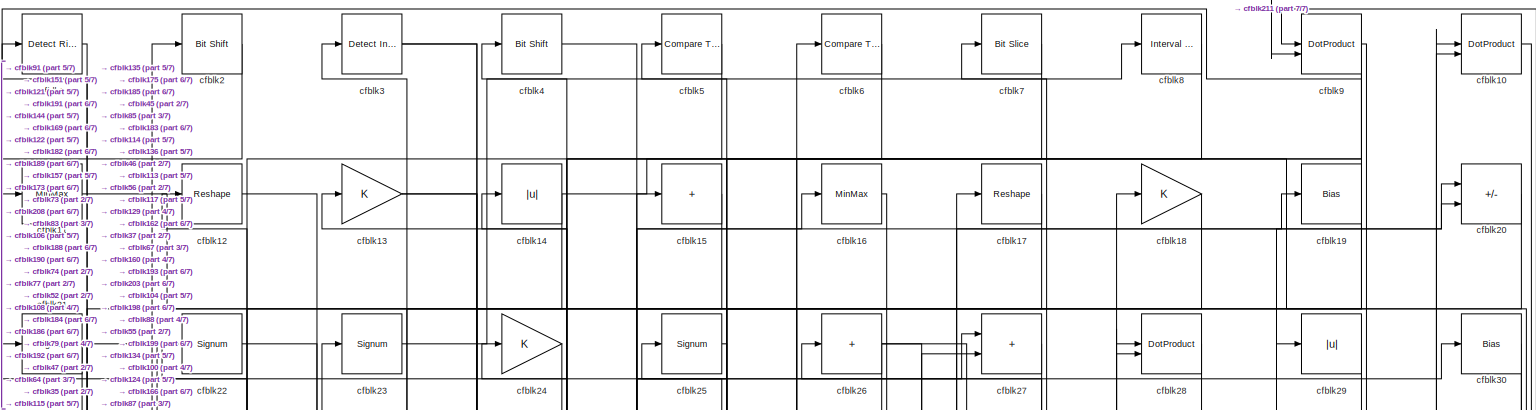
[diagram: root canvas - part 1/7, full width, top band]
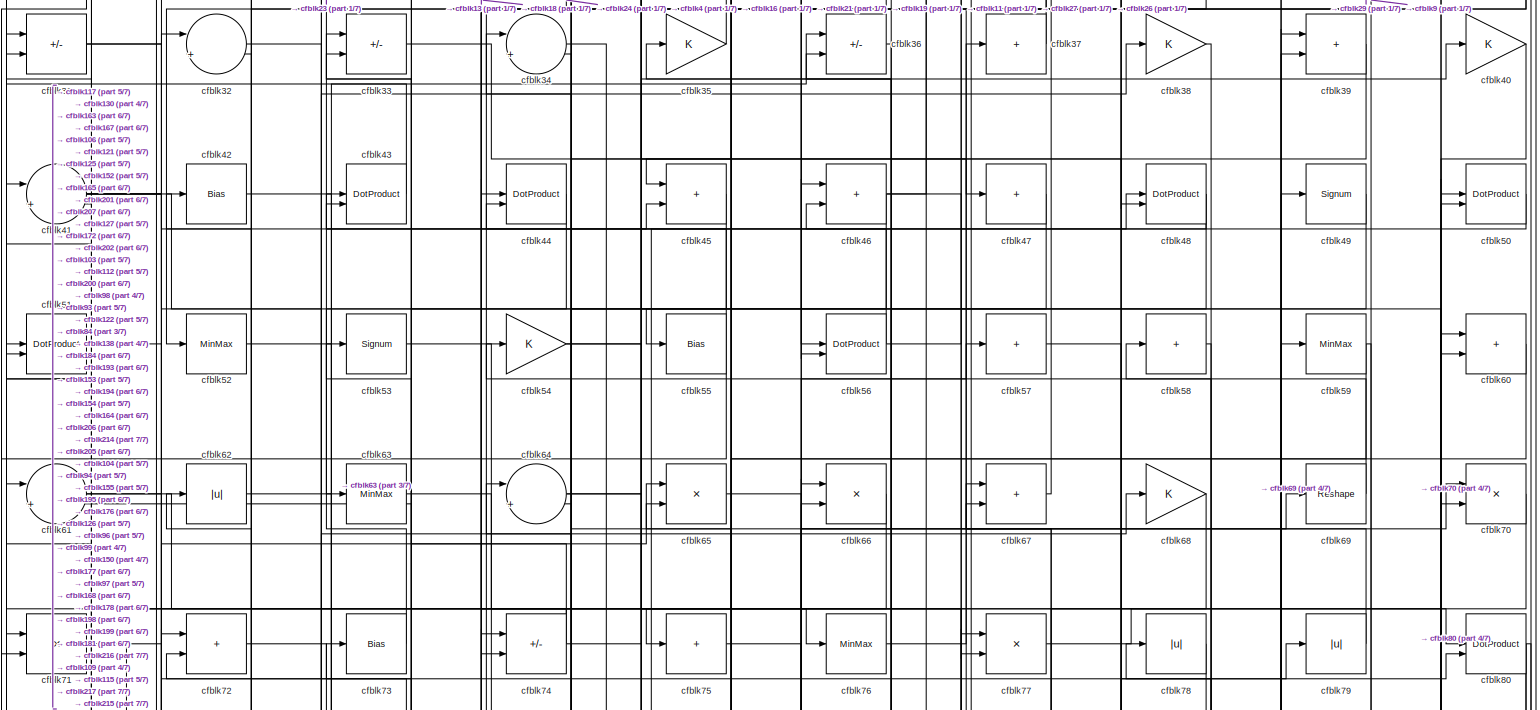
[diagram: root canvas - part 2/7, full width, top band]
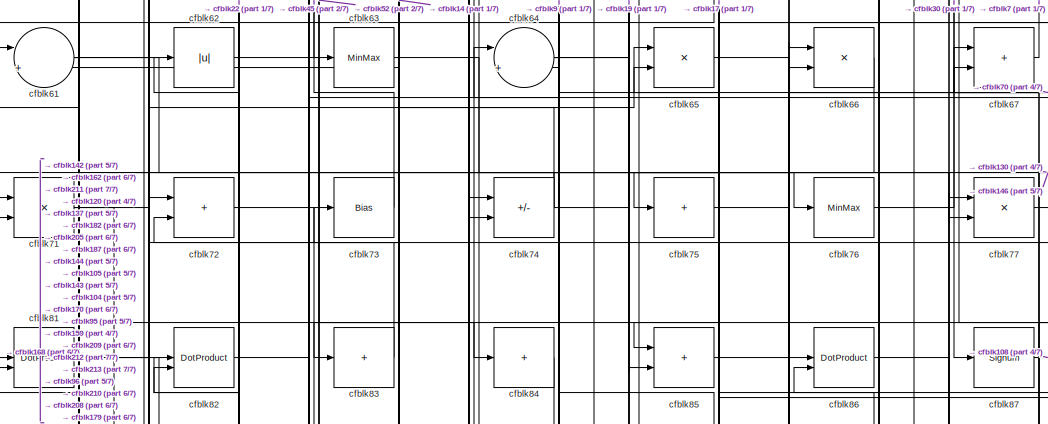
[diagram: root canvas - part 3/7, central region]
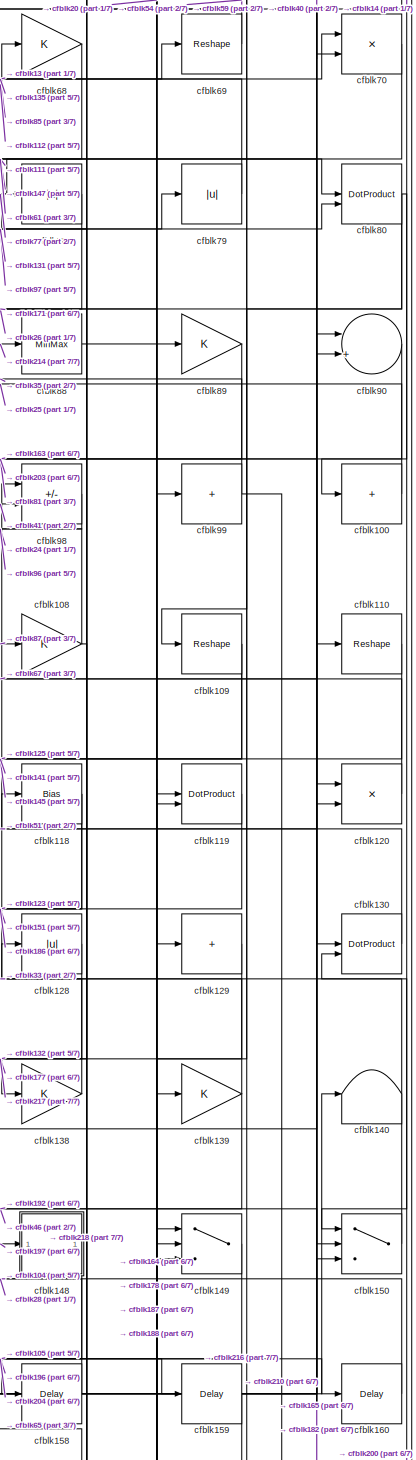
[diagram: root canvas - part 4/7, middle right region]
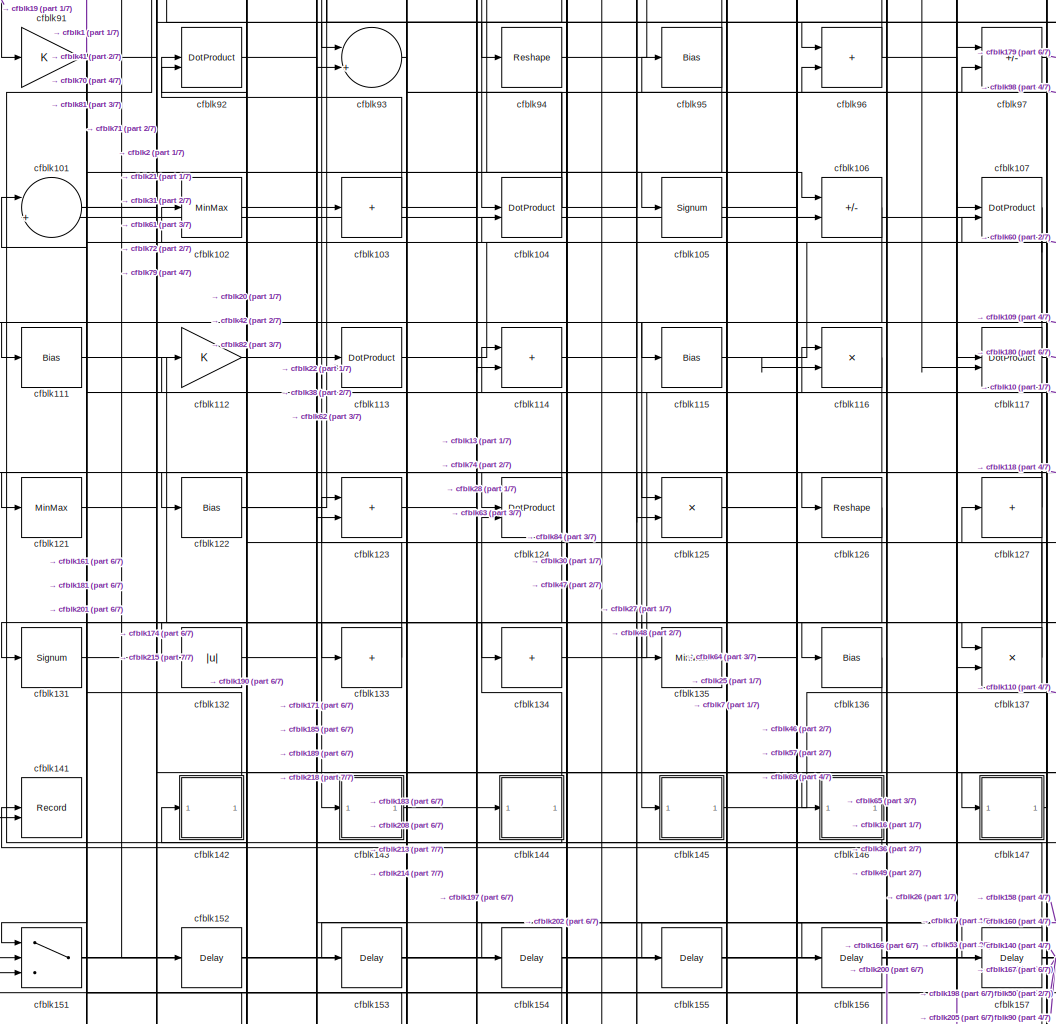
[diagram: root canvas - part 5/7, central region]
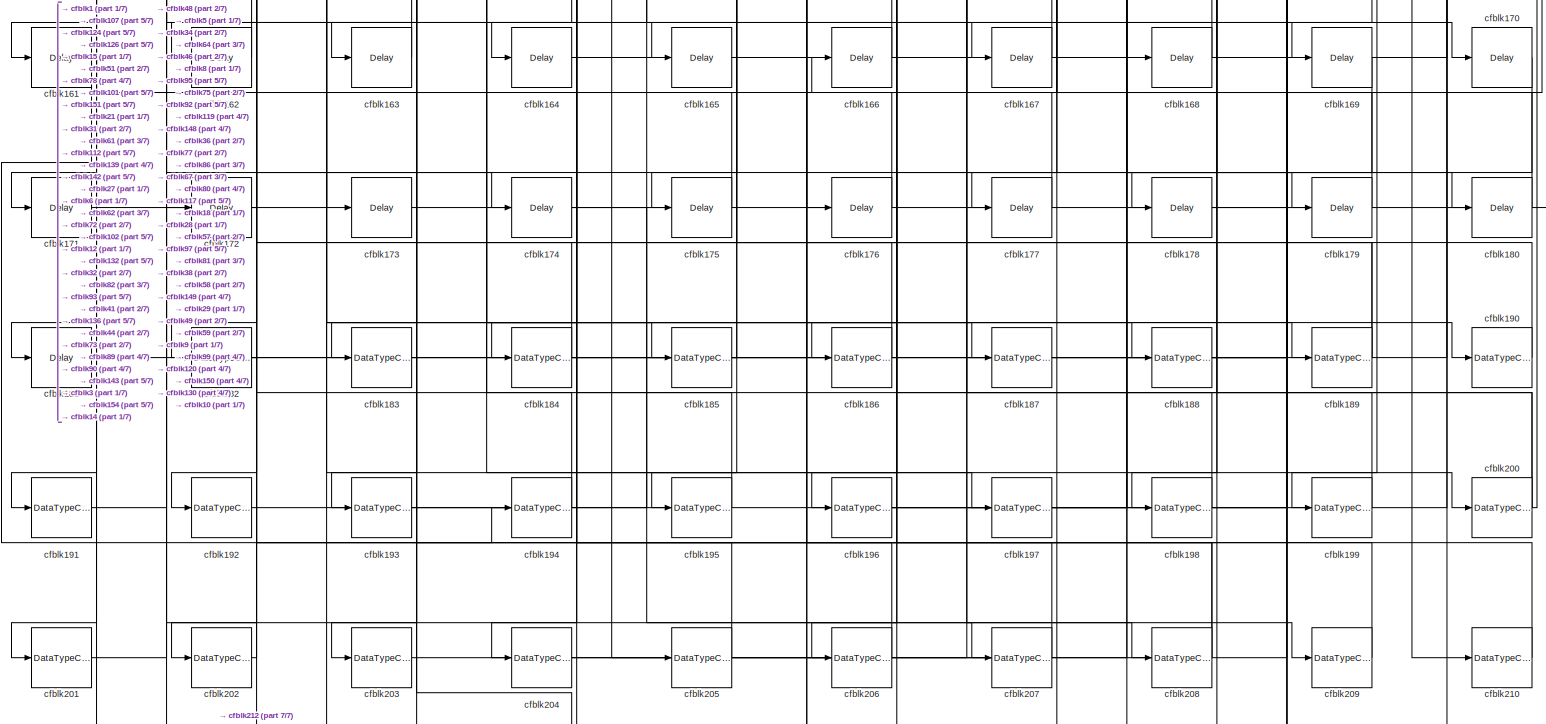
[diagram: root canvas - part 6/7, full width, bottom band]
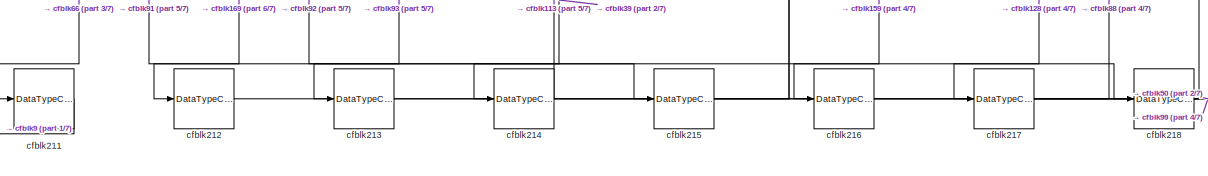
[diagram: root canvas - part 7/7, full width, bottom band]
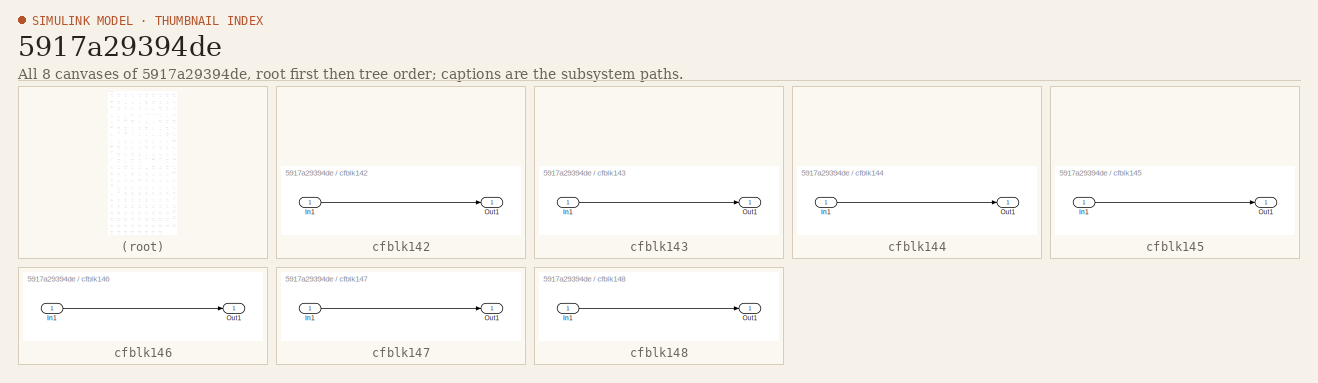
[diagram: thumbnail index - all 8 canvases of the model, root first then tree order]
MODEL slx_5917a29394de
KIND model
CONFIG AbsTol = auto
CONFIG EnableMultiTasking = off
CONFIG FixedStep = auto
CONFIG MaxStep = auto
CONFIG MinStep = auto
CONFIG RelTol = 1e-3
CONFIG SampleTimeConstraint = Unconstrained
CONFIG SolverName = VariableStepAuto
CONFIG StartTime = 0.0
CONFIG StopTime = 10.0
BLOCK [Reference] cfblk1  REF=hdlsllib/Logic and Bit
Operations/Detect Rise
Positive
  SourceBlock = hdlsllib/Logic and Bit\nOperations/Detect Rise\nPositive
  SourceType = Detect Rise Positive
BLOCK [DotProduct] cfblk10
  OutDataTypeStr = Inherit: Inherit via internal rule
BLOCK [Sum] cfblk100
  IconShape = rectangular
  Inputs = +
BLOCK [Sum] cfblk101
  Inputs = |++
BLOCK [MinMax] cfblk102
BLOCK [Sum] cfblk103
  IconShape = rectangular
  Inputs = +
BLOCK [DotProduct] cfblk104
  OutDataTypeStr = Inherit: Inherit via internal rule
BLOCK [Signum] cfblk105
BLOCK [Sum] cfblk106
  IconShape = rectangular
  Inputs = +-
BLOCK [DotProduct] cfblk107
  OutDataTypeStr = Inherit: Inherit via internal rule
BLOCK [Gain] cfblk108
BLOCK [Reshape] cfblk109
BLOCK [MinMax] cfblk11
BLOCK [Reshape] cfblk110
BLOCK [Bias] cfblk111
  Bias = 0.0
  SaturateOnIntegerOverflow = off
BLOCK [Gain] cfblk112
BLOCK [DotProduct] cfblk113
  OutDataTypeStr = Inherit: Inherit via internal rule
BLOCK [Sum] cfblk114
  IconShape = rectangular
BLOCK [Bias] cfblk115
  Bias = 0.0
  SaturateOnIntegerOverflow = off
BLOCK [Product] cfblk116
  Inputs = */
  RndMeth = Zero
  SaturateOnIntegerOverflow = on
BLOCK [DotProduct] cfblk117
  OutDataTypeStr = Inherit: Inherit via internal rule
BLOCK [Bias] cfblk118
  Bias = 0.0
  SaturateOnIntegerOverflow = off
BLOCK [DotProduct] cfblk119
  OutDataTypeStr = Inherit: Inherit via internal rule
BLOCK [Reshape] cfblk12
BLOCK [Product] cfblk120
  Inputs = */
  RndMeth = Zero
  SaturateOnIntegerOverflow = on
BLOCK [MinMax] cfblk121
BLOCK [Bias] cfblk122
  Bias = 0.0
  SaturateOnIntegerOverflow = off
BLOCK [Sum] cfblk123
  IconShape = rectangular
BLOCK [DotProduct] cfblk124
  OutDataTypeStr = Inherit: Inherit via internal rule
BLOCK [Product] cfblk125
  Inputs = */
  RndMeth = Zero
  SaturateOnIntegerOverflow = on
BLOCK [Reshape] cfblk126
BLOCK [Sum] cfblk127
  IconShape = rectangular
  Inputs = +
BLOCK [Abs] cfblk128
  SaturateOnIntegerOverflow = off
BLOCK [Sum] cfblk129
  IconShape = rectangular
  Inputs = +
BLOCK [Gain] cfblk13
BLOCK [DotProduct] cfblk130
  OutDataTypeStr = Inherit: Inherit via internal rule
BLOCK [Signum] cfblk131
BLOCK [Abs] cfblk132
  SaturateOnIntegerOverflow = off
BLOCK [Sum] cfblk133
  IconShape = rectangular
  Inputs = +
BLOCK [Sum] cfblk134
  IconShape = rectangular
  Inputs = +
BLOCK [MinMax] cfblk135
BLOCK [Bias] cfblk136
  Bias = 0.0
  SaturateOnIntegerOverflow = off
BLOCK [Product] cfblk137
  Inputs = */
  RndMeth = Zero
  SaturateOnIntegerOverflow = on
BLOCK [Gain] cfblk138
BLOCK [Gain] cfblk139
BLOCK [Abs] cfblk14
  SaturateOnIntegerOverflow = off
BLOCK [Terminator] cfblk140
BLOCK [Record] cfblk141
  CompatibilityTag = XY
  FileSettingsInternal = {"entries":[{"content":{"excelSettings":{"content":{},"type":"Streamout.ExcelSettings"}},"type":"Streamout.FileSettingStorage","uuid":""}],"packageUris":["http:\/\/schema.mathworks.com\/mf0\/streamout_blocks\/R2020a"],"version":"1.0"}
  Layout = [1 1]
  SignalsInternal = {"entries":[{"content":{"signals":[{"content":{"blockPath":[],"dimensions":[1],"domain":"","lineColor":"#a2142f","plots":[1],"port":1,"signalID":780,"signalName":"XY Graph:1"},"type":"RecordBlkView.Signal","uuid":""},{"content":{"blockPath":[],"dimensions":[1],"domain":"","lineColor":"#139fff","plots":[1],"port":2,"signalID":783,"signalName":"XY Graph:2"},"type":"RecordBlkView.Signal","uuid":""}]}...<+144ch>
  VisualizationBindings = {"xyplotplugin":{"info":[{"series":[{"bindingParametersList":[{"parameter":"X-Axis","signalID":780,"signalName":"XY Graph:1"},{"parameter":"Y-Axis","signalID":783,"signalName":"XY Graph:2"}],"seriesID":49486}],"subplotID":1}]}}
  st = -1
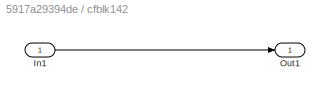
BLOCK [SubSystem] cfblk142
  LibrarySourceBlock = hdlsllib/Ports &\nSubsystems/Subsystem
BLOCK [Inport] cfblk142/In1
BLOCK [Outport] cfblk142/Out1
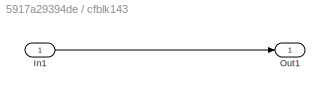
BLOCK [SubSystem] cfblk143
  LibrarySourceBlock = hdlsllib/Ports &\nSubsystems/Subsystem
BLOCK [Inport] cfblk143/In1
BLOCK [Outport] cfblk143/Out1
BLOCK [SubSystem] cfblk144
  LibrarySourceBlock = hdlsllib/Ports &\nSubsystems/Subsystem
BLOCK [Inport] cfblk144/In1
BLOCK [Outport] cfblk144/Out1
BLOCK [SubSystem] cfblk145
  LibrarySourceBlock = hdlsllib/Ports &\nSubsystems/Subsystem
BLOCK [Inport] cfblk145/In1
BLOCK [Outport] cfblk145/Out1
BLOCK [SubSystem] cfblk146
  LibrarySourceBlock = hdlsllib/Ports &\nSubsystems/Subsystem
BLOCK [Inport] cfblk146/In1
BLOCK [Outport] cfblk146/Out1
BLOCK [SubSystem] cfblk147
  LibrarySourceBlock = hdlsllib/Ports &\nSubsystems/Subsystem
BLOCK [Inport] cfblk147/In1
BLOCK [Outport] cfblk147/Out1
BLOCK [SubSystem] cfblk148
  LibrarySourceBlock = hdlsllib/Ports &\nSubsystems/Subsystem
BLOCK [Inport] cfblk148/In1
BLOCK [Outport] cfblk148/Out1
BLOCK [Switch] cfblk149
  InputSameDT = off
  SaturateOnIntegerOverflow = off
BLOCK [Sum] cfblk15
  IconShape = rectangular
  Inputs = +
BLOCK [Switch] cfblk150
  InputSameDT = off
  SaturateOnIntegerOverflow = off
BLOCK [Switch] cfblk151
  InputSameDT = off
  SaturateOnIntegerOverflow = off
BLOCK [Delay] cfblk152
  InputPortMap = u0
  SampleTime = 1
BLOCK [Delay] cfblk153
  InputPortMap = u0
  SampleTime = 1
BLOCK [Delay] cfblk154
  InputPortMap = u0
  SampleTime = 1
BLOCK [Delay] cfblk155
  InputPortMap = u0
  SampleTime = 1
BLOCK [Delay] cfblk156
  InputPortMap = u0
  SampleTime = 1
BLOCK [Delay] cfblk157
  InputPortMap = u0
  SampleTime = 1
BLOCK [Delay] cfblk158
  InputPortMap = u0
  SampleTime = 1
BLOCK [Delay] cfblk159
  InputPortMap = u0
  SampleTime = 1
BLOCK [MinMax] cfblk16
BLOCK [Delay] cfblk160
  InputPortMap = u0
  SampleTime = 1
BLOCK [Delay] cfblk161
  InputPortMap = u0
  SampleTime = 1
BLOCK [Delay] cfblk162
  InputPortMap = u0
  SampleTime = 1
BLOCK [Delay] cfblk163
  InputPortMap = u0
  SampleTime = 1
BLOCK [Delay] cfblk164
  InputPortMap = u0
  SampleTime = 1
BLOCK [Delay] cfblk165
  InputPortMap = u0
  SampleTime = 1
BLOCK [Delay] cfblk166
  InputPortMap = u0
  SampleTime = 1
BLOCK [Delay] cfblk167
  InputPortMap = u0
  SampleTime = 1
BLOCK [Delay] cfblk168
  InputPortMap = u0
  SampleTime = 1
BLOCK [Delay] cfblk169
  InputPortMap = u0
  SampleTime = 1
BLOCK [Reshape] cfblk17
BLOCK [Delay] cfblk170
  InputPortMap = u0
  SampleTime = 1
BLOCK [Delay] cfblk171
  InputPortMap = u0
  SampleTime = 1
BLOCK [Delay] cfblk172
  InputPortMap = u0
  SampleTime = 1
BLOCK [Delay] cfblk173
  InputPortMap = u0
  SampleTime = 1
BLOCK [Delay] cfblk174
  InputPortMap = u0
  SampleTime = 1
BLOCK [Delay] cfblk175
  InputPortMap = u0
  SampleTime = 1
BLOCK [Delay] cfblk176
  InputPortMap = u0
  SampleTime = 1
BLOCK [Delay] cfblk177
  InputPortMap = u0
  SampleTime = 1
BLOCK [Delay] cfblk178
  InputPortMap = u0
  SampleTime = 1
BLOCK [Delay] cfblk179
  InputPortMap = u0
  SampleTime = 1
BLOCK [Gain] cfblk18
BLOCK [Delay] cfblk180
  InputPortMap = u0
  SampleTime = 1
BLOCK [Delay] cfblk181
  InputPortMap = u0
  SampleTime = 1
BLOCK [DataTypeConversion] cfblk182
  RndMeth = Floor
  SaturateOnIntegerOverflow = off
BLOCK [DataTypeConversion] cfblk183
  OutDataTypeStr = uint8
  RndMeth = Floor
  SaturateOnIntegerOverflow = off
BLOCK [DataTypeConversion] cfblk184
  RndMeth = Floor
  SaturateOnIntegerOverflow = off
BLOCK [DataTypeConversion] cfblk185
  OutDataTypeStr = uint8
  RndMeth = Floor
  SaturateOnIntegerOverflow = off
BLOCK [DataTypeConversion] cfblk186
  OutDataTypeStr = uint8
  RndMeth = Floor
  SaturateOnIntegerOverflow = off
BLOCK [DataTypeConversion] cfblk187
  OutDataTypeStr = uint8
  RndMeth = Floor
  SaturateOnIntegerOverflow = off
BLOCK [DataTypeConversion] cfblk188
  OutDataTypeStr = uint8
  RndMeth = Floor
  SaturateOnIntegerOverflow = off
BLOCK [DataTypeConversion] cfblk189
  RndMeth = Floor
  SaturateOnIntegerOverflow = off
BLOCK [Bias] cfblk19
  Bias = 0.0
  SaturateOnIntegerOverflow = off
BLOCK [DataTypeConversion] cfblk190
  OutDataTypeStr = uint8
  RndMeth = Floor
  SaturateOnIntegerOverflow = off
BLOCK [DataTypeConversion] cfblk191
  OutDataTypeStr = uint8
  RndMeth = Floor
  SaturateOnIntegerOverflow = off
BLOCK [DataTypeConversion] cfblk192
  OutDataTypeStr = uint8
  RndMeth = Floor
  SaturateOnIntegerOverflow = off
BLOCK [DataTypeConversion] cfblk193
  OutDataTypeStr = uint8
  RndMeth = Floor
  SaturateOnIntegerOverflow = off
BLOCK [DataTypeConversion] cfblk194
  OutDataTypeStr = uint8
  RndMeth = Floor
  SaturateOnIntegerOverflow = off
BLOCK [DataTypeConversion] cfblk195
  OutDataTypeStr = uint8
  RndMeth = Floor
  SaturateOnIntegerOverflow = off
BLOCK [DataTypeConversion] cfblk196
  RndMeth = Floor
  SaturateOnIntegerOverflow = off
BLOCK [DataTypeConversion] cfblk197
  OutDataTypeStr = uint8
  RndMeth = Floor
  SaturateOnIntegerOverflow = off
BLOCK [DataTypeConversion] cfblk198
  RndMeth = Floor
  SaturateOnIntegerOverflow = off
BLOCK [DataTypeConversion] cfblk199
  OutDataTypeStr = uint8
  RndMeth = Floor
  SaturateOnIntegerOverflow = off
BLOCK [Reference] cfblk2  REF=hdlsllib/Logic and Bit
Operations/Bit Shift
  SourceBlock = hdlsllib/Logic and Bit\nOperations/Bit Shift
  SourceType = Bit Shift
BLOCK [Sum] cfblk20
  IconShape = rectangular
  Inputs = +-
BLOCK [DataTypeConversion] cfblk200
  RndMeth = Floor
  SaturateOnIntegerOverflow = off
BLOCK [DataTypeConversion] cfblk201
  OutDataTypeStr = uint8
  RndMeth = Floor
  SaturateOnIntegerOverflow = off
BLOCK [DataTypeConversion] cfblk202
  OutDataTypeStr = uint8
  RndMeth = Floor
  SaturateOnIntegerOverflow = off
BLOCK [DataTypeConversion] cfblk203
  OutDataTypeStr = uint8
  RndMeth = Floor
  SaturateOnIntegerOverflow = off
BLOCK [DataTypeConversion] cfblk204
  OutDataTypeStr = uint8
  RndMeth = Floor
  SaturateOnIntegerOverflow = off
BLOCK [DataTypeConversion] cfblk205
  RndMeth = Floor
  SaturateOnIntegerOverflow = off
BLOCK [DataTypeConversion] cfblk206
  OutDataTypeStr = uint8
  RndMeth = Floor
  SaturateOnIntegerOverflow = off
BLOCK [DataTypeConversion] cfblk207
  OutDataTypeStr = uint8
  RndMeth = Floor
  SaturateOnIntegerOverflow = off
BLOCK [DataTypeConversion] cfblk208
  RndMeth = Floor
  SaturateOnIntegerOverflow = off
BLOCK [DataTypeConversion] cfblk209
  OutDataTypeStr = uint8
  RndMeth = Floor
  SaturateOnIntegerOverflow = off
BLOCK [Signum] cfblk21
BLOCK [DataTypeConversion] cfblk210
  OutDataTypeStr = uint8
  RndMeth = Floor
  SaturateOnIntegerOverflow = off
BLOCK [DataTypeConversion] cfblk211
  OutDataTypeStr = uint8
  RndMeth = Floor
  SaturateOnIntegerOverflow = off
BLOCK [DataTypeConversion] cfblk212
  OutDataTypeStr = uint8
  RndMeth = Floor
  SaturateOnIntegerOverflow = off
BLOCK [DataTypeConversion] cfblk213
  OutDataTypeStr = uint8
  RndMeth = Floor
  SaturateOnIntegerOverflow = off
BLOCK [DataTypeConversion] cfblk214
  RndMeth = Floor
  SaturateOnIntegerOverflow = off
BLOCK [DataTypeConversion] cfblk215
  OutDataTypeStr = uint8
  RndMeth = Floor
  SaturateOnIntegerOverflow = off
BLOCK [DataTypeConversion] cfblk216
  OutDataTypeStr = uint8
  RndMeth = Floor
  SaturateOnIntegerOverflow = off
BLOCK [DataTypeConversion] cfblk217
  RndMeth = Floor
  SaturateOnIntegerOverflow = off
BLOCK [DataTypeConversion] cfblk218
  OutDataTypeStr = uint8
  RndMeth = Floor
  SaturateOnIntegerOverflow = off
BLOCK [Signum] cfblk22
BLOCK [Signum] cfblk23
BLOCK [Gain] cfblk24
BLOCK [Signum] cfblk25
BLOCK [Sum] cfblk26
  IconShape = rectangular
  Inputs = +
BLOCK [Sum] cfblk27
  IconShape = rectangular
BLOCK [DotProduct] cfblk28
  OutDataTypeStr = Inherit: Inherit via internal rule
BLOCK [Abs] cfblk29
  SaturateOnIntegerOverflow = off
BLOCK [Reference] cfblk3  REF=simulink/Logic and Bit
Operations/Detect
Increase
  LibrarySourceBlock = hdlsllib/Logic and Bit\nOperations/Detect\nIncrease
  SourceBlock = simulink/Logic and Bit\nOperations/Detect\nIncrease
  SourceType = Detect Increase
BLOCK [Bias] cfblk30
  Bias = 0.0
  SaturateOnIntegerOverflow = off
BLOCK [Sum] cfblk31
  IconShape = rectangular
  Inputs = +-
BLOCK [Sum] cfblk32
  Inputs = |++
BLOCK [Sum] cfblk33
  IconShape = rectangular
  Inputs = +-
BLOCK [Sum] cfblk34
  Inputs = |++
BLOCK [Gain] cfblk35
BLOCK [Sum] cfblk36
  IconShape = rectangular
  Inputs = +-
BLOCK [Sum] cfblk37
  IconShape = rectangular
  Inputs = +
BLOCK [Gain] cfblk38
BLOCK [Sum] cfblk39
  IconShape = rectangular
BLOCK [Reference] cfblk4  REF=hdlsllib/Logic and Bit
Operations/Bit Shift
  SourceBlock = hdlsllib/Logic and Bit\nOperations/Bit Shift
  SourceType = Bit Shift
BLOCK [Gain] cfblk40
BLOCK [Sum] cfblk41
  Inputs = |++
BLOCK [Bias] cfblk42
  Bias = 0.0
  SaturateOnIntegerOverflow = off
BLOCK [DotProduct] cfblk43
  OutDataTypeStr = Inherit: Inherit via internal rule
BLOCK [DotProduct] cfblk44
  OutDataTypeStr = Inherit: Inherit via internal rule
BLOCK [Sum] cfblk45
  IconShape = rectangular
BLOCK [Sum] cfblk46
  IconShape = rectangular
BLOCK [Sum] cfblk47
  IconShape = rectangular
  Inputs = +
BLOCK [DotProduct] cfblk48
  OutDataTypeStr = Inherit: Inherit via internal rule
BLOCK [Signum] cfblk49
BLOCK [Reference] cfblk5  REF=hdlsllib/Logic and Bit
Operations/Compare
To Constant
  SourceBlock = hdlsllib/Logic and Bit\nOperations/Compare\nTo Constant
  SourceType = Compare To Constant
BLOCK [DotProduct] cfblk50
  OutDataTypeStr = Inherit: Inherit via internal rule
BLOCK [DotProduct] cfblk51
  OutDataTypeStr = Inherit: Inherit via internal rule
BLOCK [MinMax] cfblk52
BLOCK [Signum] cfblk53
BLOCK [Gain] cfblk54
BLOCK [Bias] cfblk55
  Bias = 0.0
  SaturateOnIntegerOverflow = off
BLOCK [DotProduct] cfblk56
  OutDataTypeStr = Inherit: Inherit via internal rule
BLOCK [Sum] cfblk57
  IconShape = rectangular
  Inputs = +
BLOCK [Sum] cfblk58
  IconShape = rectangular
  Inputs = +
BLOCK [MinMax] cfblk59
BLOCK [Reference] cfblk6  REF=hdlsllib/Logic and Bit
Operations/Compare
To Constant
  SourceBlock = hdlsllib/Logic and Bit\nOperations/Compare\nTo Constant
  SourceType = Compare To Constant
BLOCK [Sum] cfblk60
  IconShape = rectangular
BLOCK [Sum] cfblk61
  Inputs = |++
BLOCK [Abs] cfblk62
  SaturateOnIntegerOverflow = off
BLOCK [MinMax] cfblk63
BLOCK [Sum] cfblk64
  Inputs = |++
BLOCK [Product] cfblk65
  Inputs = */
  RndMeth = Zero
  SaturateOnIntegerOverflow = on
BLOCK [Product] cfblk66
  Inputs = */
  RndMeth = Zero
  SaturateOnIntegerOverflow = on
BLOCK [Sum] cfblk67
  IconShape = rectangular
BLOCK [Gain] cfblk68
BLOCK [Reshape] cfblk69
BLOCK [Reference] cfblk7  REF=hdlsllib/Logic and Bit
Operations/Bit Slice
  SourceBlock = hdlsllib/Logic and Bit\nOperations/Bit Slice
  SourceType = Bit Slice
BLOCK [Product] cfblk70
  Inputs = */
  RndMeth = Zero
  SaturateOnIntegerOverflow = on
BLOCK [Product] cfblk71
  Inputs = */
  RndMeth = Zero
  SaturateOnIntegerOverflow = on
BLOCK [Sum] cfblk72
  IconShape = rectangular
BLOCK [Bias] cfblk73
  Bias = 0.0
  SaturateOnIntegerOverflow = off
BLOCK [Sum] cfblk74
  IconShape = rectangular
  Inputs = +-
BLOCK [Sum] cfblk75
  IconShape = rectangular
  Inputs = +
BLOCK [MinMax] cfblk76
BLOCK [Product] cfblk77
  Inputs = */
  RndMeth = Zero
  SaturateOnIntegerOverflow = on
BLOCK [Abs] cfblk78
  SaturateOnIntegerOverflow = off
BLOCK [Abs] cfblk79
  SaturateOnIntegerOverflow = off
BLOCK [Reference] cfblk8  REF=hdlsllib/Logic and Bit
Operations/Interval Test
  SourceBlock = hdlsllib/Logic and Bit\nOperations/Interval Test
  SourceType = Interval Test
BLOCK [DotProduct] cfblk80
  OutDataTypeStr = Inherit: Inherit via internal rule
BLOCK [DotProduct] cfblk81
  OutDataTypeStr = Inherit: Inherit via internal rule
BLOCK [DotProduct] cfblk82
  OutDataTypeStr = Inherit: Inherit via internal rule
BLOCK [Sum] cfblk83
  IconShape = rectangular
  Inputs = +
BLOCK [Sum] cfblk84
  IconShape = rectangular
  Inputs = +
BLOCK [Sum] cfblk85
  IconShape = rectangular
BLOCK [DotProduct] cfblk86
  OutDataTypeStr = Inherit: Inherit via internal rule
BLOCK [Signum] cfblk87
BLOCK [MinMax] cfblk88
BLOCK [Gain] cfblk89
BLOCK [DotProduct] cfblk9
  OutDataTypeStr = Inherit: Inherit via internal rule
BLOCK [Sum] cfblk90
  Inputs = |++
BLOCK [Gain] cfblk91
BLOCK [DotProduct] cfblk92
  OutDataTypeStr = Inherit: Inherit via internal rule
BLOCK [Sum] cfblk93
  Inputs = |++
BLOCK [Reshape] cfblk94
BLOCK [Bias] cfblk95
  Bias = 0.0
  SaturateOnIntegerOverflow = off
BLOCK [Sum] cfblk96
  IconShape = rectangular
BLOCK [Sum] cfblk97
  IconShape = rectangular
  Inputs = +-
BLOCK [Sum] cfblk98
  IconShape = rectangular
  Inputs = +-
BLOCK [Sum] cfblk99
  IconShape = rectangular
  Inputs = +
LINE cfblk100:1 -> cfblk25:1
NET cfblk101:1 -> cfblk134:1, cfblk174:1
LINE cfblk102:1 -> cfblk189:1
NET cfblk103:1 -> cfblk92:1, cfblk97:2
NET cfblk104:1 -> cfblk20:2, cfblk53:1, cfblk61:2
LINE cfblk105:1 -> cfblk160:1
LINE cfblk106:1 -> cfblk153:1
NET cfblk107:1 -> cfblk101:2, cfblk201:1
NET cfblk108:1 -> cfblk138:1, cfblk24:1
NET cfblk109:1 -> cfblk125:1, cfblk145:1
LINE cfblk10:1 -> cfblk166:1
LINE cfblk110:1 -> cfblk141:2
LINE cfblk111:1 -> cfblk137:1
NET cfblk112:1 -> cfblk38:1, cfblk68:1
LINE cfblk113:1 -> cfblk17:1
LINE cfblk114:1 -> cfblk27:1
NET cfblk115:1 -> cfblk116:2, cfblk60:1
LINE cfblk116:1 -> cfblk133:1
NET cfblk117:1 -> cfblk180:1, cfblk41:2
NET cfblk118:1 -> cfblk123:2, cfblk151:3
LINE cfblk119:1 -> cfblk186:1
LINE cfblk11:1 -> cfblk56:1
LINE cfblk120:1 -> cfblk67:1
LINE cfblk121:1 -> cfblk72:1
NET cfblk122:1 -> cfblk116:1, cfblk36:1
LINE cfblk123:1 -> cfblk156:1
NET cfblk124:1 -> cfblk114:1, cfblk161:1
NET cfblk125:1 -> cfblk118:1, cfblk57:1
LINE cfblk126:1 -> cfblk181:1
NET cfblk127:1 -> cfblk101:1, cfblk131:1, cfblk42:1
LINE cfblk128:1 -> cfblk217:1
LINE cfblk129:1 -> cfblk149:2
LINE cfblk12:1 -> cfblk173:1
LINE cfblk130:1 -> cfblk51:1
LINE cfblk131:1 -> cfblk79:1
LINE cfblk132:1 -> cfblk185:1
LINE cfblk133:1 -> cfblk123:1
LINE cfblk134:1 -> cfblk10:1
LINE cfblk135:1 -> cfblk69:1
LINE cfblk136:1 -> cfblk183:1
LINE cfblk137:1 -> cfblk82:1
LINE cfblk138:1 -> cfblk33:1
NET cfblk139:1 -> cfblk192:1, cfblk78:1
NET cfblk13:1 -> cfblk106:1, cfblk77:2
LINE cfblk142/In1:1 -> cfblk142/Out1:1
LINE cfblk142:1 -> cfblk81:2
LINE cfblk143/In1:1 -> cfblk143/Out1:1
LINE cfblk143:1 -> cfblk197:1
LINE cfblk144/In1:1 -> cfblk144/Out1:1
NET cfblk144:1 -> cfblk124:2, cfblk2:1
LINE cfblk145/In1:1 -> cfblk145/Out1:1
LINE cfblk145:1 -> cfblk110:1
LINE cfblk146/In1:1 -> cfblk146/Out1:1
LINE cfblk146:1 -> cfblk141:1
LINE cfblk147/In1:1 -> cfblk147/Out1:1
LINE cfblk147:1 -> cfblk127:1
LINE cfblk148/In1:1 -> cfblk148/Out1:1
LINE cfblk148:1 -> cfblk196:1
LINE cfblk149:1 -> cfblk204:1
NET cfblk14:1 -> cfblk100:1, cfblk83:1
LINE cfblk150:1 -> cfblk98:1
NET cfblk151:1 -> cfblk10:2, cfblk140:1, cfblk167:1, cfblk90:2
LINE cfblk152:1 -> cfblk50:2
LINE cfblk153:1 -> cfblk74:1
LINE cfblk154:1 -> cfblk202:1
LINE cfblk155:1 -> cfblk46:1
LINE cfblk156:1 -> cfblk137:2
LINE cfblk157:1 -> cfblk113:1
LINE cfblk158:1 -> cfblk104:2
LINE cfblk159:1 -> cfblk216:1
LINE cfblk15:1 -> cfblk191:1
LINE cfblk160:1 -> cfblk28:1
LINE cfblk161:1 -> cfblk194:1
LINE cfblk162:1 -> cfblk61:1
LINE cfblk163:1 -> cfblk41:1
LINE cfblk164:1 -> cfblk149:3
LINE cfblk165:1 -> cfblk120:2
LINE cfblk166:1 -> cfblk92:2
LINE cfblk167:1 -> cfblk31:2
LINE cfblk168:1 -> cfblk81:1
LINE cfblk169:1 -> cfblk212:1
LINE cfblk16:1 -> cfblk136:1
LINE cfblk170:1 -> cfblk206:1
LINE cfblk171:1 -> cfblk93:2
LINE cfblk172:1 -> cfblk72:2
LINE cfblk173:1 -> cfblk9:1
LINE cfblk174:1 -> cfblk209:1
LINE cfblk175:1 -> cfblk1:1
LINE cfblk176:1 -> cfblk51:2
LINE cfblk177:1 -> cfblk77:1
LINE cfblk178:1 -> cfblk149:1
LINE cfblk179:1 -> cfblk67:2
LINE cfblk17:1 -> cfblk85:1
LINE cfblk180:1 -> cfblk107:2
LINE cfblk181:1 -> cfblk49:1
NET cfblk182:1 -> cfblk62:1, cfblk90:1
LINE cfblk183:1 -> cfblk6:1
NET cfblk184:1 -> cfblk59:1, cfblk73:1
LINE cfblk185:1 -> cfblk5:1
LINE cfblk186:1 -> cfblk14:1
LINE cfblk187:1 -> cfblk119:1
LINE cfblk188:1 -> cfblk119:2
NET cfblk189:1 -> cfblk12:1, cfblk95:1
LINE cfblk18:1 -> cfblk74:2
LINE cfblk190:1 -> cfblk102:1
LINE cfblk191:1 -> cfblk172:1
LINE cfblk192:1 -> cfblk15:1
LINE cfblk193:1 -> cfblk18:1
LINE cfblk194:1 -> cfblk44:1
LINE cfblk195:1 -> cfblk44:2
NET cfblk196:1 -> cfblk139:1, cfblk150:3
LINE cfblk197:1 -> cfblk148:1
NET cfblk198:1 -> cfblk107:1, cfblk29:1
LINE cfblk199:1 -> cfblk58:1
NET cfblk19:1 -> cfblk45:1, cfblk85:2, cfblk91:1
LINE cfblk1:1 -> cfblk121:1
NET cfblk200:1 -> cfblk130:2, cfblk142:1, cfblk36:2
LINE cfblk201:1 -> cfblk32:1
LINE cfblk202:1 -> cfblk32:2
LINE cfblk203:1 -> cfblk28:2
LINE cfblk204:1 -> cfblk89:1
NET cfblk205:1 -> cfblk117:1, cfblk82:2
LINE cfblk206:1 -> cfblk34:1
LINE cfblk207:1 -> cfblk34:2
NET cfblk208:1 -> cfblk112:1, cfblk3:1
LINE cfblk209:1 -> cfblk86:1
LINE cfblk20:1 -> cfblk122:1
LINE cfblk210:1 -> cfblk86:2
LINE cfblk211:1 -> cfblk9:2
LINE cfblk212:1 -> cfblk66:1
LINE cfblk213:1 -> cfblk66:2
NET cfblk214:1 -> cfblk113:2, cfblk88:1
LINE cfblk215:1 -> cfblk39:1
LINE cfblk216:1 -> cfblk39:2
NET cfblk217:1 -> cfblk50:1, cfblk99:1
LINE cfblk218:1 -> cfblk128:1
NET cfblk21:1 -> cfblk151:2, cfblk169:1
LINE cfblk22:1 -> cfblk157:1
LINE cfblk23:1 -> cfblk8:1
LINE cfblk24:1 -> cfblk52:1
LINE cfblk25:1 -> cfblk115:1
NET cfblk26:1 -> cfblk114:2, cfblk117:2, cfblk129:1
LINE cfblk27:1 -> cfblk162:1
LINE cfblk28:1 -> cfblk104:1
LINE cfblk29:1 -> cfblk55:1
LINE cfblk2:1 -> cfblk11:1
NET cfblk30:1 -> cfblk124:1, cfblk87:1
NET cfblk31:1 -> cfblk125:2, cfblk165:1
LINE cfblk32:1 -> cfblk200:1
LINE cfblk33:1 -> cfblk48:2
LINE cfblk34:1 -> cfblk205:1
LINE cfblk35:1 -> cfblk21:1
LINE cfblk36:1 -> cfblk96:1
LINE cfblk37:1 -> cfblk26:1
LINE cfblk38:1 -> cfblk178:1
LINE cfblk39:1 -> cfblk214:1
NET cfblk3:1 -> cfblk188:1, cfblk190:1
LINE cfblk40:1 -> cfblk70:2
NET cfblk41:1 -> cfblk103:1, cfblk45:2, cfblk60:2, cfblk98:2
LINE cfblk42:1 -> cfblk94:1
LINE cfblk43:1 -> cfblk31:1
LINE cfblk44:1 -> cfblk193:1
LINE cfblk45:1 -> cfblk63:1
NET cfblk46:1 -> cfblk150:2, cfblk195:1, cfblk27:2
LINE cfblk47:1 -> cfblk154:1
NET cfblk48:1 -> cfblk164:1, cfblk43:2
LINE cfblk49:1 -> cfblk126:1
LINE cfblk4:1 -> cfblk47:1
LINE cfblk50:1 -> cfblk46:2
LINE cfblk51:1 -> cfblk207:1
LINE cfblk52:1 -> cfblk84:1
LINE cfblk53:1 -> cfblk97:1
NET cfblk54:1 -> cfblk40:1, cfblk76:1
NET cfblk55:1 -> cfblk43:1, cfblk71:2
NET cfblk56:1 -> cfblk19:1, cfblk4:1
LINE cfblk57:1 -> cfblk168:1
LINE cfblk58:1 -> cfblk198:1
NET cfblk59:1 -> cfblk109:1, cfblk75:1
LINE cfblk5:1 -> cfblk184:1
LINE cfblk60:1 -> cfblk155:1
NET cfblk61:1 -> cfblk130:1, cfblk146:1
LINE cfblk62:1 -> cfblk144:1
LINE cfblk63:1 -> cfblk105:1
NET cfblk64:1 -> cfblk170:1, cfblk30:1
LINE cfblk65:1 -> cfblk159:1
LINE cfblk66:1 -> cfblk211:1
LINE cfblk67:1 -> cfblk7:1
LINE cfblk68:1 -> cfblk147:1
LINE cfblk69:1 -> cfblk54:1
LINE cfblk6:1 -> cfblk182:1
LINE cfblk70:1 -> cfblk111:1
NET cfblk71:1 -> cfblk106:2, cfblk152:1
LINE cfblk72:1 -> cfblk93:1
LINE cfblk73:1 -> cfblk23:1
NET cfblk74:1 -> cfblk16:1, cfblk33:2, cfblk71:1
LINE cfblk75:1 -> cfblk176:1
LINE cfblk76:1 -> cfblk37:1
LINE cfblk77:1 -> cfblk80:1
LINE cfblk78:1 -> cfblk171:1
LINE cfblk79:1 -> cfblk13:1
LINE cfblk7:1 -> cfblk135:1
NET cfblk80:1 -> cfblk132:1, cfblk150:1, cfblk177:1
NET cfblk81:1 -> cfblk120:1, cfblk65:2
LINE cfblk82:1 -> cfblk187:1
LINE cfblk83:1 -> cfblk22:1
LINE cfblk84:1 -> cfblk143:1
LINE cfblk85:1 -> cfblk70:1
LINE cfblk86:1 -> cfblk208:1
LINE cfblk87:1 -> cfblk108:1
LINE cfblk88:1 -> cfblk20:1
LINE cfblk89:1 -> cfblk203:1
LINE cfblk8:1 -> cfblk175:1
LINE cfblk90:1 -> cfblk163:1
LINE cfblk91:1 -> cfblk215:1
LINE cfblk92:1 -> cfblk218:1
LINE cfblk93:1 -> cfblk213:1
LINE cfblk94:1 -> cfblk48:1
NET cfblk95:1 -> cfblk151:1, cfblk64:1
NET cfblk96:1 -> cfblk158:1, cfblk65:1
NET cfblk97:1 -> cfblk179:1, cfblk80:2
LINE cfblk98:1 -> cfblk96:2
NET cfblk99:1 -> cfblk210:1, cfblk35:1
NET cfblk9:1 -> cfblk199:1, cfblk56:2, cfblk64:2
note: NET lines group one-source signal fan-out (src -> all destinations, sorted); 1:1 wires keep LINE
